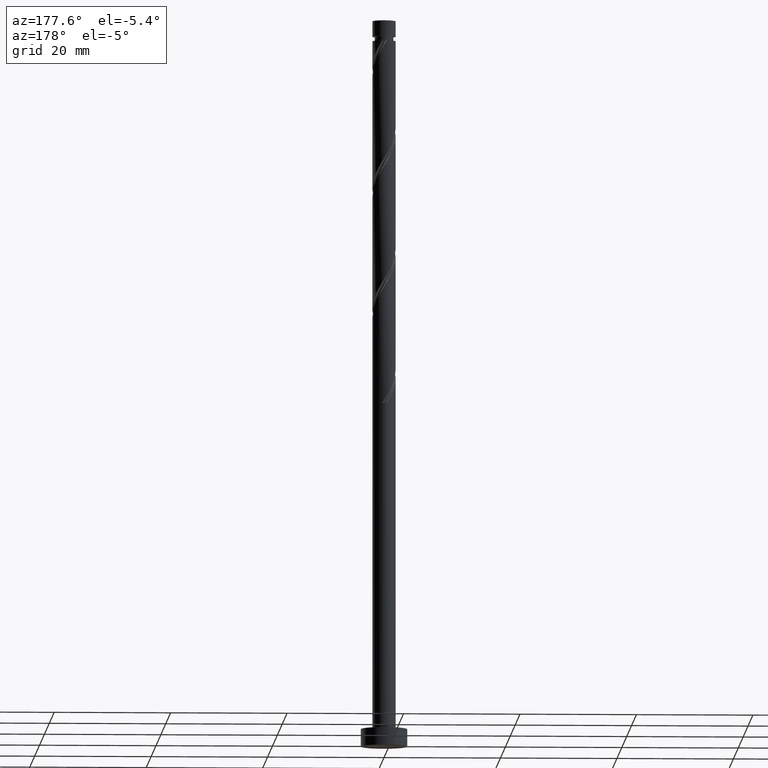
[diagram: clean part render]
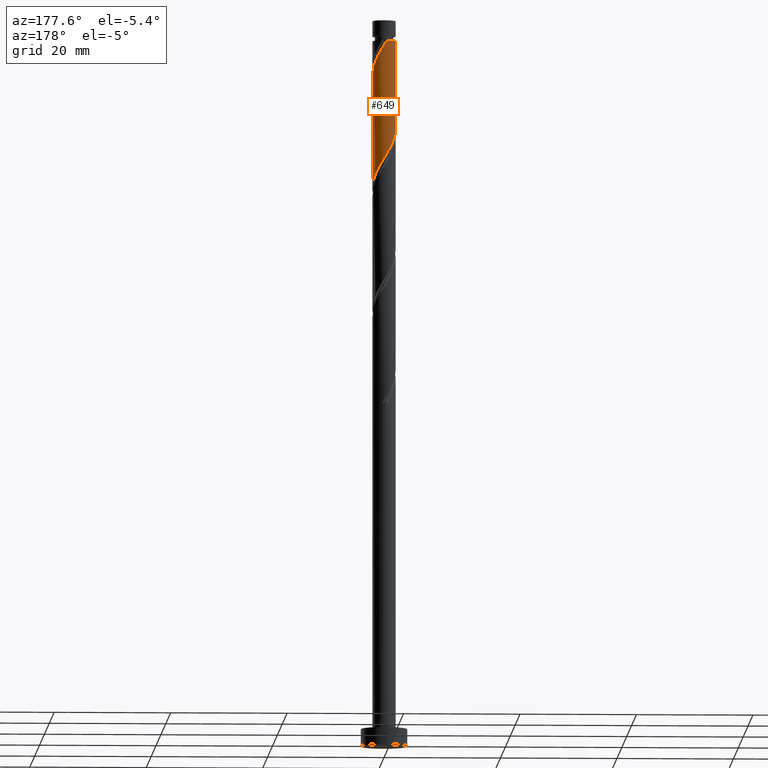
[diagram: same view with one face highlighted and labeled with its STEP entity id]
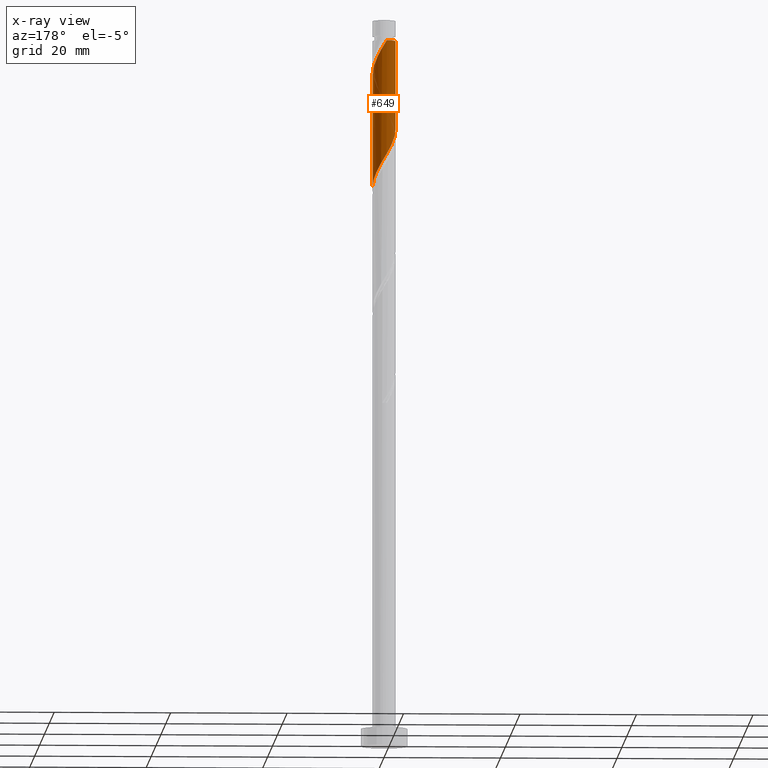
[diagram: x-ray of the same camera — body ghosted, the highlighted face saturated]
A machine part, auxiliary view. The second image highlights one B-rep face of the part: STEP entity #649.
The next image is the same camera in x-ray: the body ghosted, the highlighted face saturated — about 0% of this face is hidden behind the body in this view.
In plain terms, the highlighted cylindrical surface (edge-blend (fillet) strip) has radius 2 mm, axis along (-0, -0, -1).
Its self-contained STEP definition (entity closure, byte-faithful):
#27 = CARTESIAN_POINT ( 'NONE',  ( -0.8300743961697151230, 1.819608885673919207, 102.8052847874142373 ) ) ;
#37 = EDGE_CURVE ( 'NONE', #475, #251, #1070, .T. ) ;
#38 = CARTESIAN_POINT ( 'NONE',  ( 1.474043792816779330, 1.351737732275873904, 98.63861812074762270 ) ) ;
#51 = LINE ( 'NONE', #167, #55 ) ;
#55 = VECTOR ( 'NONE', #843, 1000.000000000000000 ) ;
#64 = CARTESIAN_POINT ( 'NONE',  ( -1.999999999999999556, 1.529296483886990492E-15, 106.5950872288845090 ) ) ;
#167 = CARTESIAN_POINT ( 'NONE',  ( 2.000000000000000000, 2.449293598294705921E-16, 125.0000000000000000 ) ) ;
#169 = DIRECTION ( 'NONE',  ( -0.000000000000000000, -0.000000000000000000, -1.000000000000000000 ) ) ;
#173 =( BOUNDED_CURVE ( )  B_SPLINE_CURVE ( 2, ( #1299, #1077, #760, #1495, #635, #737, #1241, #1248, #27, #388, #403, #1012, #767, #1255, #279, #999, #38, #1349, #395, #992, #1234, #1487, #616 ),
 .UNSPECIFIED., .F., .F. ) 
 B_SPLINE_CURVE_WITH_KNOTS ( ( 3, 2, 2, 2, 2, 2, 2, 2, 2, 2, 2, 3 ),
 ( 0.4295322023138553047, 0.4375000000000000000, 0.4500000000000000111, 0.4625000000000000222, 0.4749999999999999778, 0.4874999999999999889, 0.5000000000000000000, 0.5124999999999999556, 0.5250000000000000222, 0.5374999999999999778, 0.5500000000000000444, 0.5545322023138552492 ),
 .UNSPECIFIED. ) 
 CURVE ( )  GEOMETRIC_REPRESENTATION_ITEM ( )  RATIONAL_B_SPLINE_CURVE ( ( 0.9039174447099358467, 0.9019565955404653668, 0.9090909090909136125, 0.8978984914501296766, 0.9090909090909136125, 0.8978984914501296766, 0.9090909090909136125, 0.8978984914501296766, 0.9090909090909136125, 0.8978984914501296766, 0.9090909090909136125, 0.8978984914501296766, 0.9090909090909136125, 0.8978984914501296766, 0.9090909090909136125, 0.8978984914501296766, 0.9090909090909136125, 0.8978984914501296766, 0.9090909090909136125, 0.8978984914501296766, 0.9090909090909136125, 0.9050328050005780334, 0.9039174447099358467 ) ) 
 REPRESENTATION_ITEM ( '' )  );
#193 = CARTESIAN_POINT ( 'NONE',  ( 1.999999999999999556, 2.803710220459482995E-15, 96.17842056221785185 ) ) ;
#251 = VERTEX_POINT ( 'NONE', #64 ) ;
#258 = ORIENTED_EDGE ( 'NONE', *, *, #1267, .F. ) ;
#279 = CARTESIAN_POINT ( 'NONE',  ( 0.9841890232517236381, 1.741083561036292915, 99.68028478741422305 ) ) ;
#286 = DIRECTION ( 'NONE',  ( -1.000000000000000000, 0.000000000000000000, 0.000000000000000000 ) ) ;
#287 = CARTESIAN_POINT ( 'NONE',  ( 1.741083561036296024, 0.9841890232517237491, 117.3886181207475801 ) ) ;
#334 =( BOUNDED_CURVE ( )  B_SPLINE_CURVE ( 2, ( #1403, #1026, #1249, #436, #287, #1520, #1013, #560, #427, #1396, #911, #1127, #1387 ),
 .UNSPECIFIED., .F., .T. ) 
 B_SPLINE_CURVE_WITH_KNOTS ( ( 3, 2, 2, 2, 2, 2, 3 ),
 ( 0.6795322023138552492, 0.6875000000000000000, 0.6999999999999998446, 0.7124999999999999112, 0.7249999999999998668, 0.7374999999999998224, 0.7499999999999997780 ),
 .UNSPECIFIED. ) 
 CURVE ( )  GEOMETRIC_REPRESENTATION_ITEM ( )  RATIONAL_B_SPLINE_CURVE ( ( 0.9039174447099427301, 0.9019565955404720281, 0.9090909090909204959, 0.8978984914501364489, 0.9090909090909204959, 0.8978984914501364489, 0.9090909090909204959, 0.8978984914501364489, 0.9090909090909204959, 0.8978984914501364489, 0.9090909090909204959, 0.8978984914501365600, 0.9090909090909203849 ) ) 
 REPRESENTATION_ITEM ( '' )  );
#388 = CARTESIAN_POINT ( 'NONE',  ( -0.5418766612026980622, 1.951079754338987504, 102.2844514540809513 ) ) ;
#395 = CARTESIAN_POINT ( 'NONE',  ( 1.819608885673919429, 0.8300743961697146789, 97.59695145408092287 ) ) ;
#403 = CARTESIAN_POINT ( 'NONE',  ( -0.2271575946980705363, 1.987057982840708892, 101.7636181207475943 ) ) ;
#410 = CARTESIAN_POINT ( 'NONE',  ( 2.000000000000002665, 6.896827280274611938E-16, 115.6821490126106511 ) ) ;
#427 = CARTESIAN_POINT ( 'NONE',  ( 0.8300743961697171214, 1.819608885673921650, 119.4719514540809229 ) ) ;
#436 = CARTESIAN_POINT ( 'NONE',  ( 1.896963788657572314, 0.7084284778787397485, 116.8677847874142657 ) ) ;
#456 = CIRCLE ( 'NONE', #1341, 1.999999999999997335 ) ;
#475 = VERTEX_POINT ( 'NONE', #590 ) ;
#502 = ORIENTED_EDGE ( 'NONE', *, *, #634, .F. ) ;
#510 = CYLINDRICAL_SURFACE ( 'NONE', #1392, 2.000000000000000000 ) ;
#560 = CARTESIAN_POINT ( 'NONE',  ( 1.118272131136734293, 1.688138017008854019, 118.9511181207475801 ) ) ;
#590 = CARTESIAN_POINT ( 'NONE',  ( -1.999999999999997335, 0.000000000000000000, 121.5552847874142515 ) ) ;
#616 = CARTESIAN_POINT ( 'NONE',  ( 1.999999999999999556, 2.803710220459482995E-15, 96.17842056221785185 ) ) ;
#634 = EDGE_CURVE ( 'NONE', #251, #1196, #173, .T. ) ;
#635 = CARTESIAN_POINT ( 'NONE',  ( -1.741083561036292915, 0.9841890232517229720, 104.8886181207476085 ) ) ;
#641 = DIRECTION ( 'NONE',  ( -1.000000000000000000, 0.000000000000000000, 0.000000000000000000 ) ) ;
#649 = ADVANCED_FACE ( 'NONE', ( #753 ), #510, .T. ) ;
#694 = EDGE_LOOP ( 'NONE', ( #258, #1162, #502, #1265, #878 ) ) ;
#737 = CARTESIAN_POINT ( 'NONE',  ( -1.585203333415016624, 1.259949568624707084, 104.3677847874142799 ) ) ;
#753 = FACE_OUTER_BOUND ( 'NONE', #694, .T. ) ;
#760 = CARTESIAN_POINT ( 'NONE',  ( -1.959999999999999520, 0.3979949748426482858, 105.9302847874142515 ) ) ;
#761 = CARTESIAN_POINT ( 'NONE',  ( 0.000000000000000000, 0.000000000000000000, 121.5552847874142515 ) ) ;
#767 = CARTESIAN_POINT ( 'NONE',  ( 0.3979949748426486744, 1.959999999999999520, 100.7219514540809371 ) ) ;
#843 = DIRECTION ( 'NONE',  ( -0.000000000000000000, -0.000000000000000000, -1.000000000000000000 ) ) ;
#847 = CARTESIAN_POINT ( 'NONE',  ( -2.000000000000000000, 0.000000000000000000, 125.0000000000000000 ) ) ;
#870 = DIRECTION ( 'NONE',  ( -0.000000000000000000, -0.000000000000000000, -1.000000000000000000 ) ) ;
#878 = ORIENTED_EDGE ( 'NONE', *, *, #1394, .T. ) ;
#911 = CARTESIAN_POINT ( 'NONE',  ( 0.2271575946980718130, 1.987057982840711556, 120.5136181207475801 ) ) ;
#957 = VECTOR ( 'NONE', #1566, 1000.000000000000000 ) ;
#992 = CARTESIAN_POINT ( 'NONE',  ( 1.951079754338987504, 0.5418766612026979512, 97.07611812074762270 ) ) ;
#999 = CARTESIAN_POINT ( 'NONE',  ( 1.259949568624707528, 1.585203333415016180, 99.15945145408089445 ) ) ;
#1012 = CARTESIAN_POINT ( 'NONE',  ( 0.08756147180655712847, 2.023036211342430946, 101.2427847874142941 ) ) ;
#1013 = CARTESIAN_POINT ( 'NONE',  ( 1.351737732275876569, 1.474043792816780885, 118.4302847874142373 ) ) ;
#1026 = CARTESIAN_POINT ( 'NONE',  ( 2.000000000000002665, 0.2010075630518433354, 116.0164535880185070 ) ) ;
#1070 = LINE ( 'NONE', #847, #957 ) ;
#1077 = CARTESIAN_POINT ( 'NONE',  ( -1.999999999999998668, 0.2010075630518460832, 106.2607826534766531 ) ) ;
#1127 = CARTESIAN_POINT ( 'NONE',  ( -0.08756147180655073081, 2.023036211342432722, 121.0344514540809371 ) ) ;
#1134 = CARTESIAN_POINT ( 'NONE',  ( -0.3979949748426369061, 1.960000000000002185, 121.5552847874142515 ) ) ;
#1162 = ORIENTED_EDGE ( 'NONE', *, *, #1513, .T. ) ;
#1196 = VERTEX_POINT ( 'NONE', #193 ) ;
#1234 = CARTESIAN_POINT ( 'NONE',  ( 1.987057982840708892, 0.2271575946980701477, 96.55528478741427989 ) ) ;
#1241 = CARTESIAN_POINT ( 'NONE',  ( -1.351737732275873904, 1.474043792816779108, 103.8469514540809513 ) ) ;
#1248 = CARTESIAN_POINT ( 'NONE',  ( -1.118272131136732073, 1.688138017008851355, 103.3261181207475801 ) ) ;
#1249 = CARTESIAN_POINT ( 'NONE',  ( 1.960000000000002629, 0.3979949748426480083, 116.3469514540809087 ) ) ;
#1255 = CARTESIAN_POINT ( 'NONE',  ( 0.7084284778787397485, 1.896963788657568761, 100.2011181207475943 ) ) ;
#1265 = ORIENTED_EDGE ( 'NONE', *, *, #37, .F. ) ;
#1267 = EDGE_CURVE ( 'NONE', #1449, #1431, #334, .T. ) ;
#1299 = CARTESIAN_POINT ( 'NONE',  ( -1.999999999999999556, 1.529296483886990492E-15, 106.5950872288845090 ) ) ;
#1341 = AXIS2_PLACEMENT_3D ( 'NONE', #761, #169, #641 ) ;
#1349 = CARTESIAN_POINT ( 'NONE',  ( 1.688138017008851355, 1.118272131136731629, 98.11778478741426568 ) ) ;
#1378 = CARTESIAN_POINT ( 'NONE',  ( 0.000000000000000000, 0.000000000000000000, 125.0000000000000000 ) ) ;
#1387 = CARTESIAN_POINT ( 'NONE',  ( -0.3979949748426369061, 1.960000000000002185, 121.5552847874142515 ) ) ;
#1392 = AXIS2_PLACEMENT_3D ( 'NONE', #1378, #870, #286 ) ;
#1394 = EDGE_CURVE ( 'NONE', #475, #1431, #456, .T. ) ;
#1396 = CARTESIAN_POINT ( 'NONE',  ( 0.5418766612026999496, 1.951079754338989947, 119.9927847874142657 ) ) ;
#1403 = CARTESIAN_POINT ( 'NONE',  ( 2.000000000000002665, 6.896827280274611938E-16, 115.6821490126106511 ) ) ;
#1431 = VERTEX_POINT ( 'NONE', #1134 ) ;
#1449 = VERTEX_POINT ( 'NONE', #410 ) ;
#1487 = CARTESIAN_POINT ( 'NONE',  ( 1.999999999999999556, 0.1139474748928639980, 96.36793165142512407 ) ) ;
#1495 = CARTESIAN_POINT ( 'NONE',  ( -1.896963788657569205, 0.7084284778787394155, 105.4094514540809371 ) ) ;
#1513 = EDGE_CURVE ( 'NONE', #1449, #1196, #51, .T. ) ;
#1520 = CARTESIAN_POINT ( 'NONE',  ( 1.585203333415019511, 1.259949568624708416, 117.9094514540809371 ) ) ;
#1566 = DIRECTION ( 'NONE',  ( -0.000000000000000000, -0.000000000000000000, -1.000000000000000000 ) ) ;